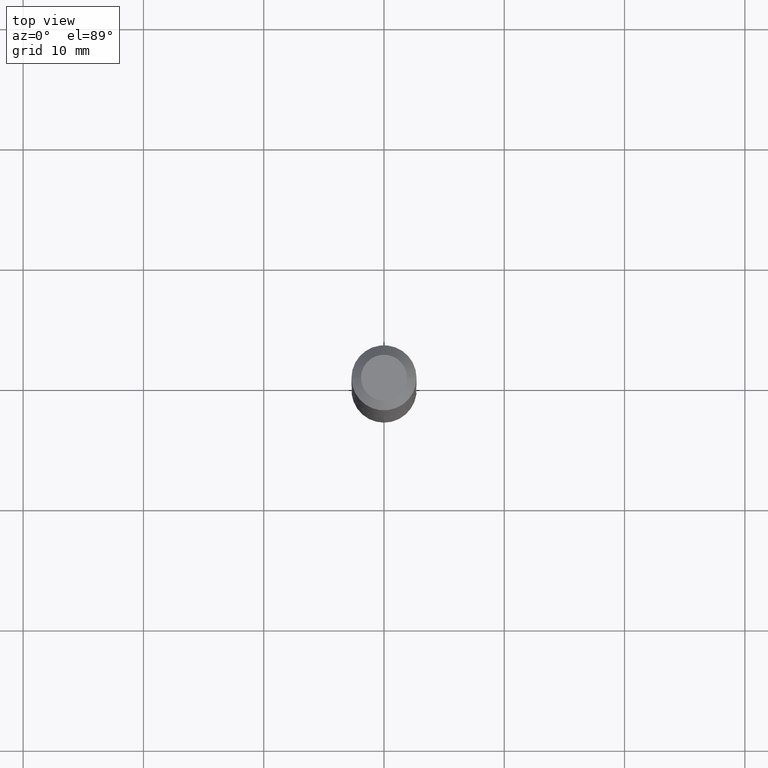
[diagram: clean part render]
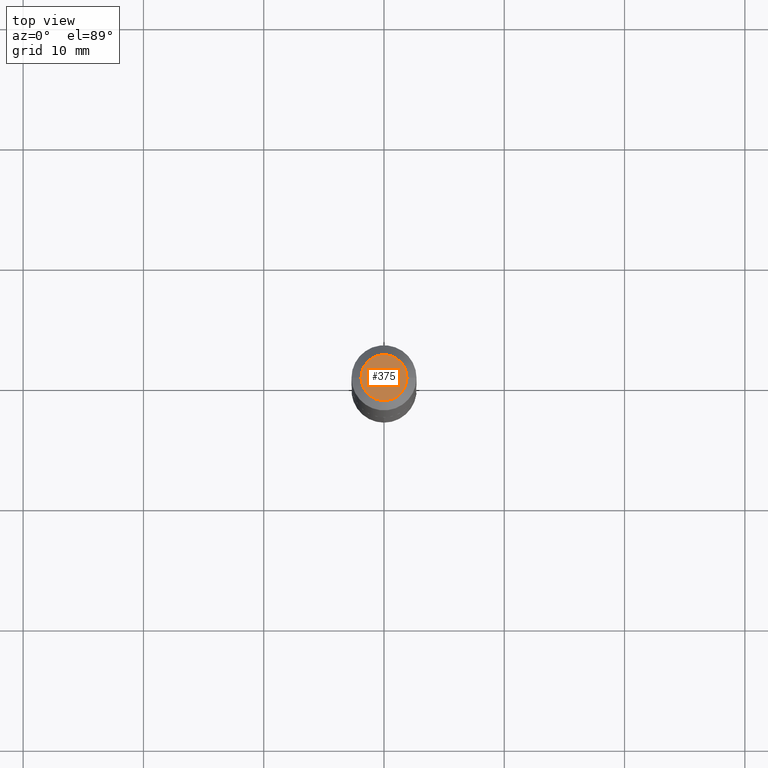
[diagram: same view with one face highlighted and labeled with its STEP entity id]
A machine part, top view. The second image highlights one B-rep face of the part: STEP entity #375.
In plain terms, the highlighted planar face has unit normal (0, -0, -1).
Its self-contained STEP definition (entity closure, byte-faithful):
#12 = CARTESIAN_POINT ( 'NONE',  ( 5.989671091818683705E-48, -8.551662891793989687E-34, -2.449293598294718806E-19 ) ) ;
#15 = AXIS2_PLACEMENT_3D ( 'NONE', #123, #34, #120 ) ;
#34 = DIRECTION ( 'NONE',  ( -2.445468806185136597E-29, 3.491481338843145583E-15, 1.000000000000000000 ) ) ;
#53 = CARTESIAN_POINT ( 'NONE',  ( -0.07524999999999999745, 5.800223374153149725E-16, -4.898587196628091026E-19 ) ) ;
#62 = CARTESIAN_POINT ( 'NONE',  ( 0.07524999999999999745, -6.780021514669125702E-16, -4.898587196547362783E-19 ) ) ;
#92 = ORIENTED_EDGE ( 'NONE', *, *, #281, .T. ) ;
#94 = VERTEX_POINT ( 'NONE', #62 ) ;
#117 = PLANE ( 'NONE',  #370 ) ;
#120 = DIRECTION ( 'NONE',  ( 1.000000000000000000, -6.982962677686265922E-15, 4.876211453340348118E-29 ) ) ;
#123 = CARTESIAN_POINT ( 'NONE',  ( 1.197934218363736741E-47, -1.710332578358797937E-33, -4.898587196589437612E-19 ) ) ;
#181 = DIRECTION ( 'NONE',  ( 1.000000000000000000, -6.982962677686265922E-15, 4.876211453340348118E-29 ) ) ;
#199 = EDGE_CURVE ( 'NONE', #94, #341, #233, .T. ) ;
#224 = AXIS2_PLACEMENT_3D ( 'NONE', #328, #236, #181 ) ;
#233 = CIRCLE ( 'NONE', #15, 0.07524999999999999745 ) ;
#236 = DIRECTION ( 'NONE',  ( -2.445468806185136597E-29, 3.491481338843145583E-15, 1.000000000000000000 ) ) ;
#279 = FACE_OUTER_BOUND ( 'NONE', #329, .T. ) ;
#281 = EDGE_CURVE ( 'NONE', #341, #94, #383, .T. ) ;
#289 = DIRECTION ( 'NONE',  ( 2.438088387897960049E-29, -3.491481338843145188E-15, -1.000000000000000000 ) ) ;
#318 = DIRECTION ( 'NONE',  ( -1.000000000000000000, 6.982962677686265922E-15, -4.876176775795935793E-29 ) ) ;
#328 = CARTESIAN_POINT ( 'NONE',  ( 1.197934218363736741E-47, -1.710332578358797937E-33, -4.898587196589437612E-19 ) ) ;
#329 = EDGE_LOOP ( 'NONE', ( #92, #376 ) ) ;
#341 = VERTEX_POINT ( 'NONE', #53 ) ;
#370 = AXIS2_PLACEMENT_3D ( 'NONE', #12, #289, #318 ) ;
#375 = ADVANCED_FACE ( 'NONE', ( #279 ), #117, .F. ) ;
#376 = ORIENTED_EDGE ( 'NONE', *, *, #199, .T. ) ;
#383 = CIRCLE ( 'NONE', #224, 0.07524999999999999745 ) ;